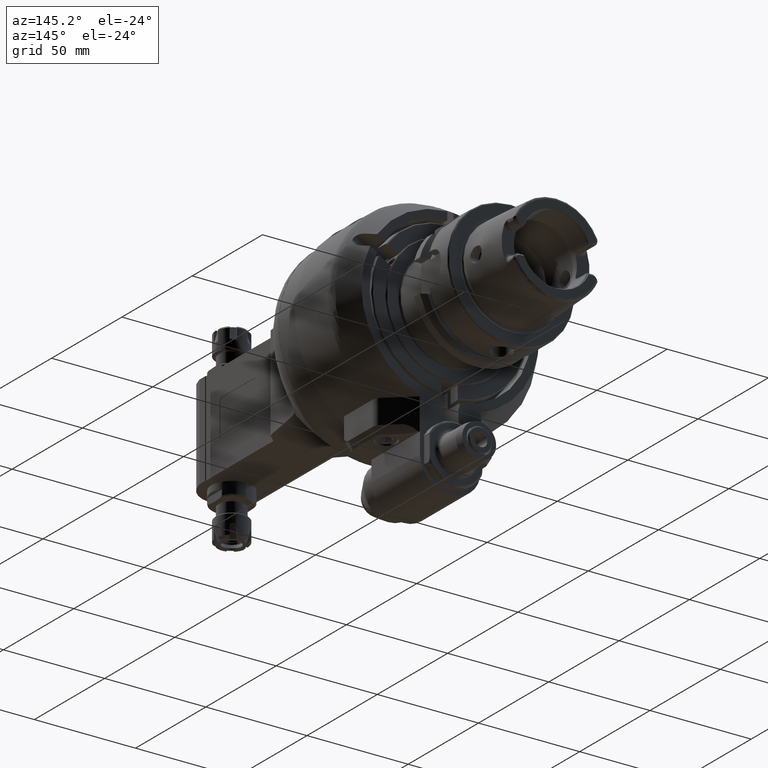
[diagram: clean part render]
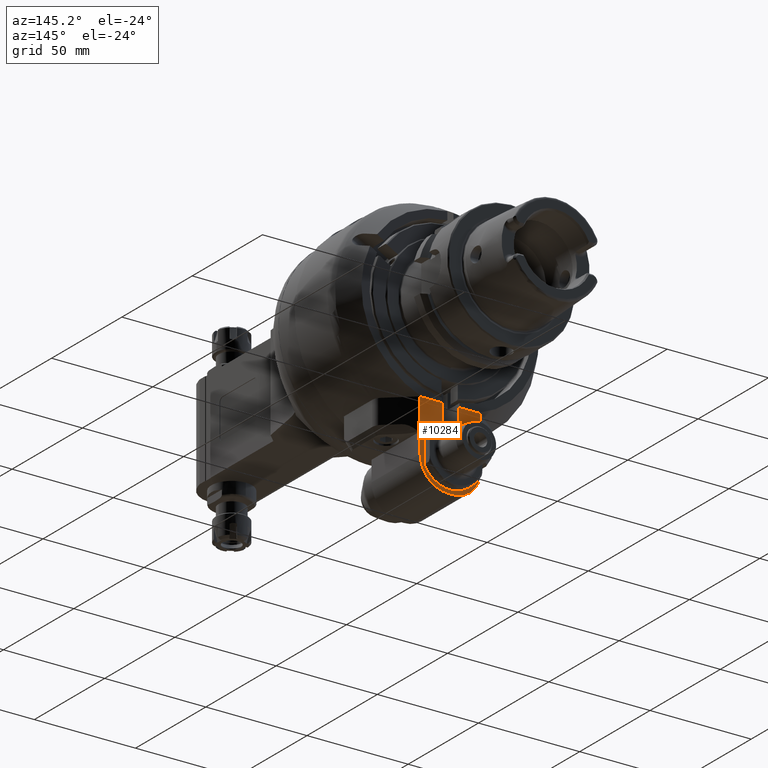
[diagram: same view with one face highlighted and labeled with its STEP entity id]
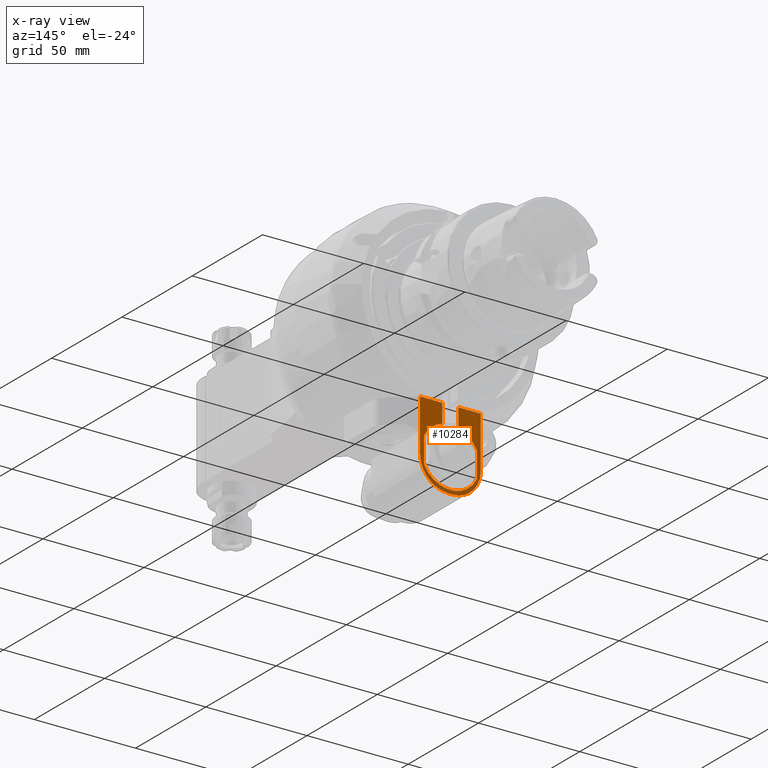
[diagram: x-ray of the same camera — body ghosted, the highlighted face saturated]
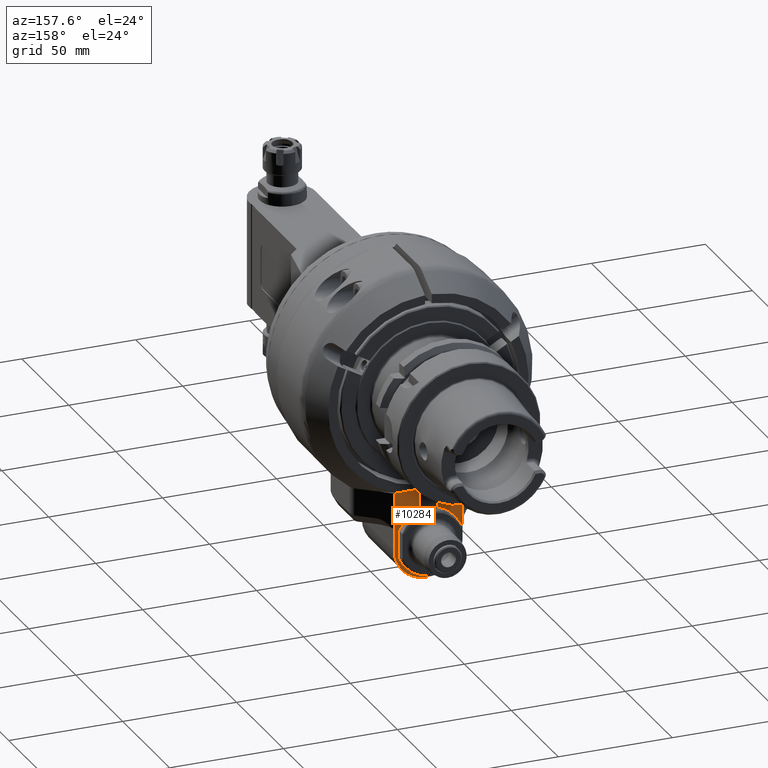
[diagram: same view with one face highlighted and labeled with its STEP entity id]
A machine part, auxiliary view. The second image highlights one B-rep face of the part: STEP entity #10284.
The next image is the same camera in x-ray: the body ghosted, the highlighted face saturated — about 0% of this face is hidden behind the body in this view.
A second angle (auxiliary view) of the same face is appended — the face is thin or edge-on in the first view.
In plain terms, the highlighted planar face has unit normal (0, 1, 0).
Its self-contained STEP definition (entity closure, byte-faithful):
#1162=CIRCLE('',#11378,14.);
#1163=CIRCLE('',#11379,14.);
#1164=CIRCLE('',#11380,14.5);
#1165=CIRCLE('',#11381,14.5);
#1166=CIRCLE('',#11382,14.5);
#1718=FACE_OUTER_BOUND('',#2397,.T.);
#2397=EDGE_LOOP('',(#8912,#8913,#8914,#8915,#8916,#8917,#8918,#8919,#8920,
#8921,#8922,#8923,#8924,#8925,#8926,#8927,#8928,#8929));
#3099=LINE('',#18575,#3810);
#3103=LINE('',#18583,#3814);
#3118=LINE('',#18654,#3829);
#3129=LINE('',#18683,#3840);
#3130=LINE('',#18686,#3841);
#3131=LINE('',#18688,#3842);
#3132=LINE('',#18690,#3843);
#3133=LINE('',#18694,#3844);
#3134=LINE('',#18697,#3845);
#3135=LINE('',#18699,#3846);
#3136=LINE('',#18703,#3847);
#3137=LINE('',#18707,#3848);
#3138=LINE('',#18710,#3849);
#3810=VECTOR('',#13905,11.01697177174);
#3814=VECTOR('',#13909,11.01697177174);
#3829=VECTOR('',#13954,0.0169717717364);
#3840=VECTOR('',#13983,15.5);
#3841=VECTOR('',#13986,15.5);
#3842=VECTOR('',#13987,0.0169717717364);
#3843=VECTOR('',#13988,10.);
#3844=VECTOR('',#13991,2.);
#3845=VECTOR('',#13994,10.);
#3846=VECTOR('',#13995,9.312640135234);
#3847=VECTOR('',#13998,12.84523257867);
#3848=VECTOR('',#14001,12.84523257867);
#3849=VECTOR('',#14004,9.312640135234);
#4762=VERTEX_POINT('',#18572);
#4763=VERTEX_POINT('',#18574);
#4766=VERTEX_POINT('',#18580);
#4767=VERTEX_POINT('',#18582);
#4795=VERTEX_POINT('',#18651);
#4796=VERTEX_POINT('',#18653);
#4803=VERTEX_POINT('',#18685);
#4804=VERTEX_POINT('',#18687);
#4805=VERTEX_POINT('',#18689);
#4806=VERTEX_POINT('',#18691);
#4807=VERTEX_POINT('',#18693);
#4808=VERTEX_POINT('',#18695);
#4809=VERTEX_POINT('',#18698);
#4810=VERTEX_POINT('',#18700);
#4811=VERTEX_POINT('',#18702);
#4812=VERTEX_POINT('',#18704);
#4813=VERTEX_POINT('',#18706);
#4814=VERTEX_POINT('',#18708);
#6158=EDGE_CURVE('',#4763,#4762,#3099,.T.);
#6162=EDGE_CURVE('',#4766,#4767,#3103,.T.);
#6193=EDGE_CURVE('',#4796,#4795,#3118,.T.);
#6208=EDGE_CURVE('',#4767,#4795,#3129,.T.);
#6209=EDGE_CURVE('',#4803,#4762,#3130,.T.);
#6210=EDGE_CURVE('',#4804,#4803,#3131,.T.);
#6211=EDGE_CURVE('',#4805,#4804,#3132,.T.);
#6212=EDGE_CURVE('',#4805,#4806,#1162,.T.);
#6213=EDGE_CURVE('',#4806,#4807,#3133,.T.);
#6214=EDGE_CURVE('',#4807,#4808,#1163,.T.);
#6215=EDGE_CURVE('',#4796,#4808,#3134,.T.);
#6216=EDGE_CURVE('',#4766,#4809,#3135,.T.);
#6217=EDGE_CURVE('',#4809,#4810,#1164,.T.);
#6218=EDGE_CURVE('',#4811,#4810,#3136,.T.);
#6219=EDGE_CURVE('',#4811,#4812,#1165,.T.);
#6220=EDGE_CURVE('',#4813,#4812,#3137,.T.);
#6221=EDGE_CURVE('',#4813,#4814,#1166,.T.);
#6222=EDGE_CURVE('',#4814,#4763,#3138,.T.);
#8912=ORIENTED_EDGE('',*,*,#6209,.F.);
#8913=ORIENTED_EDGE('',*,*,#6210,.F.);
#8914=ORIENTED_EDGE('',*,*,#6211,.F.);
#8915=ORIENTED_EDGE('',*,*,#6212,.T.);
#8916=ORIENTED_EDGE('',*,*,#6213,.T.);
#8917=ORIENTED_EDGE('',*,*,#6214,.T.);
#8918=ORIENTED_EDGE('',*,*,#6215,.F.);
#8919=ORIENTED_EDGE('',*,*,#6193,.T.);
#8920=ORIENTED_EDGE('',*,*,#6208,.F.);
#8921=ORIENTED_EDGE('',*,*,#6162,.F.);
#8922=ORIENTED_EDGE('',*,*,#6216,.T.);
#8923=ORIENTED_EDGE('',*,*,#6217,.T.);
#8924=ORIENTED_EDGE('',*,*,#6218,.F.);
#8925=ORIENTED_EDGE('',*,*,#6219,.T.);
#8926=ORIENTED_EDGE('',*,*,#6220,.F.);
#8927=ORIENTED_EDGE('',*,*,#6221,.T.);
#8928=ORIENTED_EDGE('',*,*,#6222,.T.);
#8929=ORIENTED_EDGE('',*,*,#6158,.T.);
#9749=PLANE('',#11377);
#10284=ADVANCED_FACE('',(#1718),#9749,.T.);
#11377=AXIS2_PLACEMENT_3D('',#18684,#13984,#13985);
#11378=AXIS2_PLACEMENT_3D('',#18692,#13989,#13990);
#11379=AXIS2_PLACEMENT_3D('',#18696,#13992,#13993);
#11380=AXIS2_PLACEMENT_3D('',#18701,#13996,#13997);
#11381=AXIS2_PLACEMENT_3D('',#18705,#13999,#14000);
#11382=AXIS2_PLACEMENT_3D('',#18709,#14002,#14003);
#13905=DIRECTION('',(1.,0.,0.));
#13909=DIRECTION('',(-1.,0.,0.));
#13954=DIRECTION('',(-1.,0.,0.));
#13983=DIRECTION('',(0.,0.,-1.));
#13984=DIRECTION('center_axis',(0.,1.,0.));
#13985=DIRECTION('ref_axis',(0.,0.,1.));
#13986=DIRECTION('',(0.,0.,1.));
#13987=DIRECTION('',(1.,0.,0.));
#13988=DIRECTION('',(0.,0.,1.));
#13989=DIRECTION('center_axis',(0.,1.,0.));
#13990=DIRECTION('ref_axis',(1.,0.,0.));
#13991=DIRECTION('',(-1.,0.,0.));
#13992=DIRECTION('center_axis',(0.,1.,0.));
#13993=DIRECTION('ref_axis',(0.,0.,-1.));
#13994=DIRECTION('',(0.,0.,-1.));
#13995=DIRECTION('',(0.,0.,-1.));
#13996=DIRECTION('center_axis',(0.,-1.,0.));
#13997=DIRECTION('ref_axis',(-0.275862068965489,0.,0.96119723205286));
#13998=DIRECTION('',(0.,0.,1.));
#13999=DIRECTION('center_axis',(0.,-1.,0.));
#14000=DIRECTION('ref_axis',(-0.896551724137936,0.,-0.442939054436718));
#14001=DIRECTION('',(0.,0.,-1.));
#14002=DIRECTION('center_axis',(0.,-1.,0.));
#14003=DIRECTION('ref_axis',(0.896551724137936,0.,0.442939054436718));
#14004=DIRECTION('',(0.,0.,1.));
#18572=CARTESIAN_POINT('',(15.01697177174,39.5,-41.75));
#18574=CARTESIAN_POINT('',(4.,39.5,-41.75));
#18575=CARTESIAN_POINT('',(4.,39.5,-41.75));
#18580=CARTESIAN_POINT('',(-4.,39.5,-41.75));
#18582=CARTESIAN_POINT('',(-15.01697177174,39.5,-41.75));
#18583=CARTESIAN_POINT('',(-4.,39.5,-41.75));
#18651=CARTESIAN_POINT('',(-15.01697177174,39.5,-57.25));
#18653=CARTESIAN_POINT('',(-15.,39.5,-57.25));
#18654=CARTESIAN_POINT('',(-15.,39.5,-57.25));
#18683=CARTESIAN_POINT('',(-15.01697177174,39.5,-41.75));
#18684=CARTESIAN_POINT('Origin',(0.,39.5,-40.75));
#18685=CARTESIAN_POINT('',(15.01697177174,39.5,-57.25));
#18686=CARTESIAN_POINT('',(15.01697177174,39.5,-57.25));
#18687=CARTESIAN_POINT('',(15.,39.5,-57.25));
#18688=CARTESIAN_POINT('',(15.,39.5,-57.25));
#18689=CARTESIAN_POINT('',(15.,39.5,-67.25));
#18690=CARTESIAN_POINT('',(15.,39.5,-67.25));
#18691=CARTESIAN_POINT('',(1.,39.5,-81.25));
#18692=CARTESIAN_POINT('Origin',(1.,39.5,-67.25));
#18693=CARTESIAN_POINT('',(-1.,39.5,-81.25));
#18694=CARTESIAN_POINT('',(1.,39.5,-81.25));
#18695=CARTESIAN_POINT('',(-15.,39.5,-67.25));
#18696=CARTESIAN_POINT('Origin',(-1.,39.5,-67.25));
#18697=CARTESIAN_POINT('',(-15.,39.5,-57.25));
#18698=CARTESIAN_POINT('',(-4.,39.5,-51.06264013523));
#18699=CARTESIAN_POINT('',(-4.,39.5,-41.75));
#18700=CARTESIAN_POINT('',(-13.,39.5,-58.57738371067));
#18701=CARTESIAN_POINT('Origin',(0.,39.5,-65.));
#18702=CARTESIAN_POINT('',(-13.,39.5,-71.42261628933));
#18703=CARTESIAN_POINT('',(-13.,39.5,-71.42261628933));
#18704=CARTESIAN_POINT('',(13.,39.5,-71.42261628933));
#18705=CARTESIAN_POINT('Origin',(0.,39.5,-65.));
#18706=CARTESIAN_POINT('',(13.,39.5,-58.57738371067));
#18707=CARTESIAN_POINT('',(13.,39.5,-58.57738371067));
#18708=CARTESIAN_POINT('',(4.,39.5,-51.06264013523));
#18709=CARTESIAN_POINT('Origin',(0.,39.5,-65.));
#18710=CARTESIAN_POINT('',(4.,39.5,-51.06264013523));